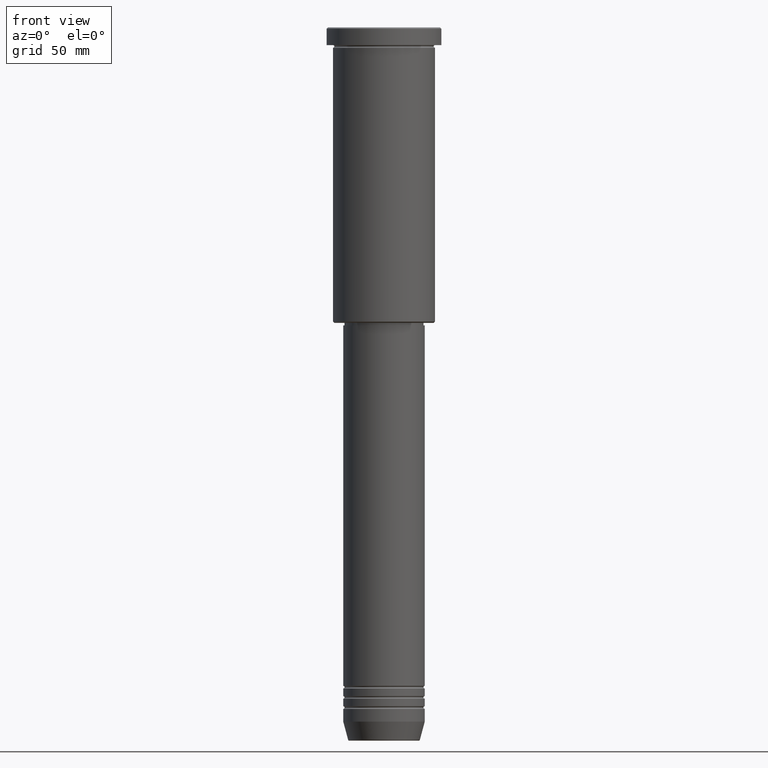
[diagram: clean part render]
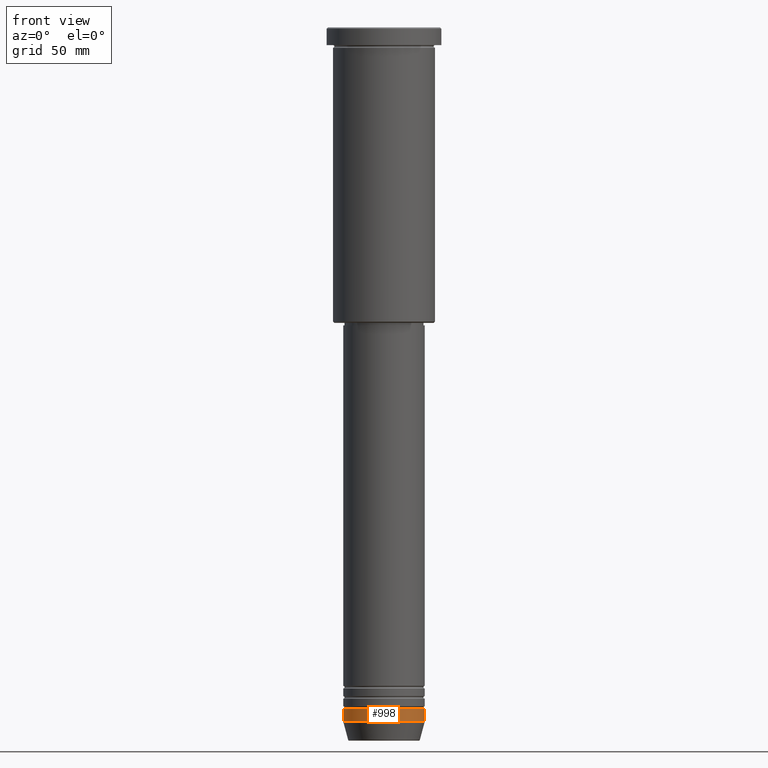
[diagram: same view with one face highlighted and labeled with its STEP entity id]
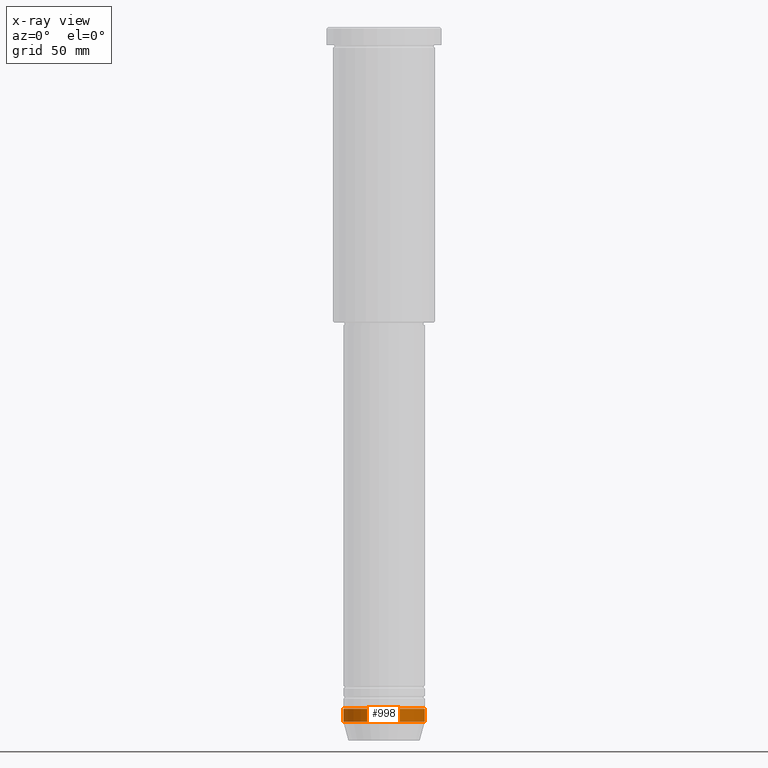
[diagram: x-ray of the same camera — body ghosted, the highlighted face saturated]
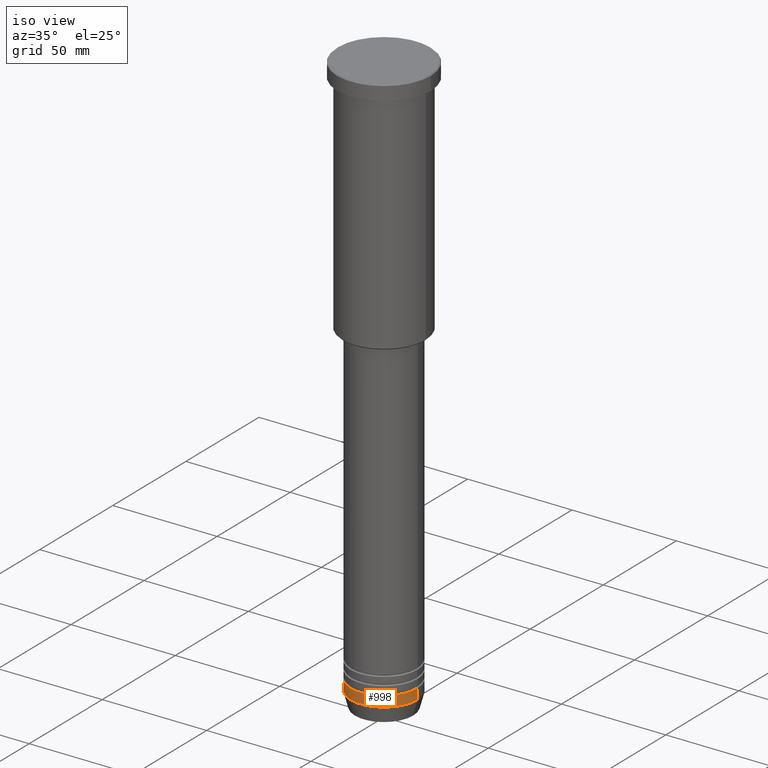
[diagram: same view with one face highlighted and labeled with its STEP entity id]
A machine part, front view. The second image highlights one B-rep face of the part: STEP entity #998.
The next image is the same camera in x-ray: the body ghosted, the highlighted face saturated — about 0% of this face is hidden behind the body in this view.
A second angle (iso view) of the same face is appended — the face is thin or edge-on in the first view.
In plain terms, the highlighted cylindrical surface (partial cylindrical patch) has radius 16 mm, axis along (-0, -0, 1).
Its self-contained STEP definition (entity closure, byte-faithful):
#50 = DIRECTION ( 'NONE',  ( -0.000000000000000000, -0.000000000000000000, 1.000000000000000000 ) ) ;
#112 = CARTESIAN_POINT ( 'NONE',  ( -16.00000000000000000, 1.959434878635765131E-15, -267.5000000000000000 ) ) ;
#143 = CARTESIAN_POINT ( 'NONE',  ( 0.000000000000000000, 0.000000000000000000, 0.000000000000000000 ) ) ;
#234 = CYLINDRICAL_SURFACE ( 'NONE', #880, 16.00000000000000000 ) ;
#260 = ORIENTED_EDGE ( 'NONE', *, *, #500, .T. ) ;
#263 = VERTEX_POINT ( 'NONE', #112 ) ;
#290 = DIRECTION ( 'NONE',  ( 1.000000000000000000, 0.000000000000000000, 0.000000000000000000 ) ) ;
#308 = ORIENTED_EDGE ( 'NONE', *, *, #325, .T. ) ;
#318 = AXIS2_PLACEMENT_3D ( 'NONE', #839, #1103, #290 ) ;
#325 = EDGE_CURVE ( 'NONE', #568, #863, #1013, .T. ) ;
#362 = LINE ( 'NONE', #1069, #497 ) ;
#368 = LINE ( 'NONE', #808, #1093 ) ;
#384 = EDGE_LOOP ( 'NONE', ( #556, #308, #260, #823 ) ) ;
#413 = DIRECTION ( 'NONE',  ( 1.000000000000000000, 0.000000000000000000, 0.000000000000000000 ) ) ;
#484 = CIRCLE ( 'NONE', #318, 16.00000000000000000 ) ;
#497 = VECTOR ( 'NONE', #993, 1000.000000000000000 ) ;
#500 = EDGE_CURVE ( 'NONE', #863, #936, #362, .T. ) ;
#522 = CARTESIAN_POINT ( 'NONE',  ( -16.00000000000000000, 1.959434878635765131E-15, -272.5000000000000000 ) ) ;
#556 = ORIENTED_EDGE ( 'NONE', *, *, #1161, .F. ) ;
#568 = VERTEX_POINT ( 'NONE', #522 ) ;
#569 = CARTESIAN_POINT ( 'NONE',  ( 16.00000000000000000, 0.000000000000000000, -272.5000000000000000 ) ) ;
#603 = FACE_OUTER_BOUND ( 'NONE', #384, .T. ) ;
#719 = EDGE_CURVE ( 'NONE', #263, #936, #484, .T. ) ;
#756 = CARTESIAN_POINT ( 'NONE',  ( 16.00000000000000000, 0.000000000000000000, -267.5000000000000000 ) ) ;
#808 = CARTESIAN_POINT ( 'NONE',  ( -16.00000000000000000, 1.959434878635765131E-15, 0.000000000000000000 ) ) ;
#823 = ORIENTED_EDGE ( 'NONE', *, *, #719, .F. ) ;
#839 = CARTESIAN_POINT ( 'NONE',  ( 0.000000000000000000, 0.000000000000000000, -267.5000000000000000 ) ) ;
#848 = DIRECTION ( 'NONE',  ( 1.000000000000000000, 0.000000000000000000, 0.000000000000000000 ) ) ;
#863 = VERTEX_POINT ( 'NONE', #569 ) ;
#866 = CARTESIAN_POINT ( 'NONE',  ( 0.000000000000000000, 0.000000000000000000, -272.5000000000000000 ) ) ;
#880 = AXIS2_PLACEMENT_3D ( 'NONE', #143, #50, #413 ) ;
#936 = VERTEX_POINT ( 'NONE', #756 ) ;
#993 = DIRECTION ( 'NONE',  ( -0.000000000000000000, -0.000000000000000000, 1.000000000000000000 ) ) ;
#998 = ADVANCED_FACE ( 'NONE', ( #603 ), #234, .T. ) ;
#1013 = CIRCLE ( 'NONE', #1089, 16.00000000000000000 ) ;
#1063 = DIRECTION ( 'NONE',  ( -0.000000000000000000, -0.000000000000000000, 1.000000000000000000 ) ) ;
#1069 = CARTESIAN_POINT ( 'NONE',  ( 16.00000000000000000, 0.000000000000000000, 0.000000000000000000 ) ) ;
#1089 = AXIS2_PLACEMENT_3D ( 'NONE', #866, #1063, #848 ) ;
#1093 = VECTOR ( 'NONE', #1124, 1000.000000000000000 ) ;
#1103 = DIRECTION ( 'NONE',  ( -0.000000000000000000, -0.000000000000000000, 1.000000000000000000 ) ) ;
#1124 = DIRECTION ( 'NONE',  ( -0.000000000000000000, -0.000000000000000000, 1.000000000000000000 ) ) ;
#1161 = EDGE_CURVE ( 'NONE', #568, #263, #368, .T. ) ;